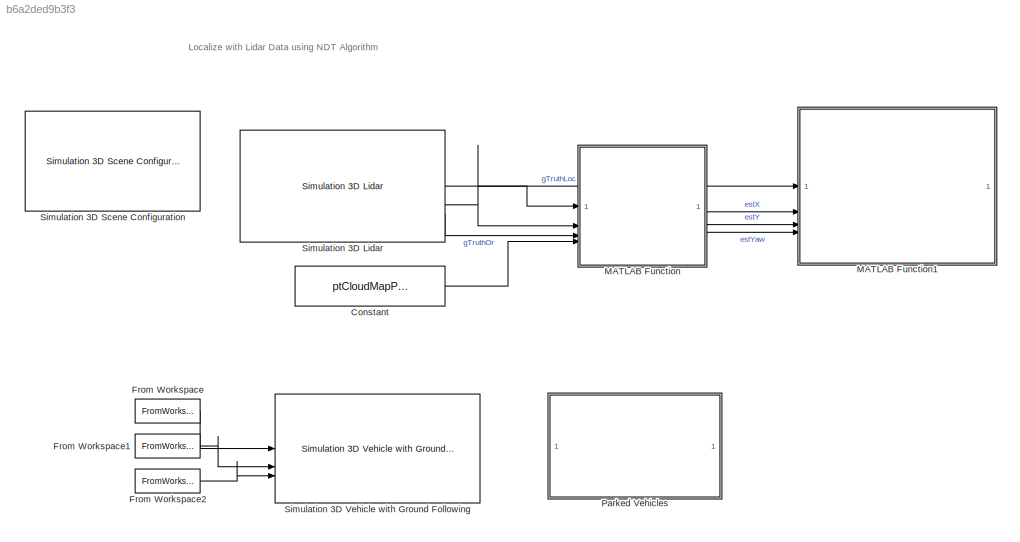
MODEL slx_b6a2ded9b3f3
KIND model
CONFIG AbsTol = auto
CONFIG EnableMultiTasking = off
CONFIG FixedStep = auto
CONFIG MaxStep = auto
CONFIG MinStep = auto
CONFIG PreLoadFcn = data = load('ReferencePathForward.mat');\n\nrefPosesX = data.ReferencePathForward.refPosesX; \nrefPosesY = data.ReferencePathForward.refPosesY;\nrefPosesT = data.ReferencePathForward.refPosesT;\n\nload('parkingLotPCMapPoints.mat','ptCloudMapPoints');
CONFIG RelTol = 1e-3
CONFIG SampleTimeConstraint = Unconstrained
CONFIG SolverName = VariableStepAuto
CONFIG StartTime = 0.0
CONFIG StopTime = 28.964
WORKSPACE source: mxarray member
WORKSPACE ndtMap: pcmapndt (value not decoded)
BLOCK [Constant] Constant
  Value = ptCloudMapPoints
BLOCK [FromWorkspace] From Workspace
  OutputAfterFinalValue = Holding final value
  VariableName = refPosesX
BLOCK [FromWorkspace] From Workspace1
  OutputAfterFinalValue = Holding final value
  VariableName = refPosesY
BLOCK [FromWorkspace] From Workspace2
  OutputAfterFinalValue = Holding final value
  VariableName = refPosesT
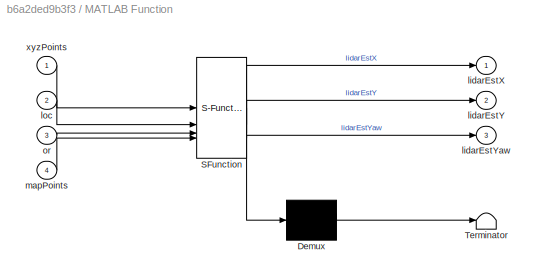
BLOCK [SubSystem] MATLAB Function
  ErrorFcn = Stateflow.Translate.translate
  PermitHierarchicalResolution = ExplicitOnly
  SFBlockType = MATLAB Function
  TreatAsAtomicUnit = on
BLOCK [Demux] MATLAB Function/ Demux 
  Outputs = 1
BLOCK [S-Function] MATLAB Function/ SFunction 
  EnableBusSupport = off
  FunctionName = sf_sfun
  PortCounts = [4 4]
  SFcnIsStateOwnerBlock = off
  SFunctionDeploymentMode = off
  Tag = Stateflow S-Function 2
BLOCK [Terminator] MATLAB Function/ Terminator 
BLOCK [Outport] MATLAB Function/lidarEstX
BLOCK [Outport] MATLAB Function/lidarEstY
  Port = 2
BLOCK [Outport] MATLAB Function/lidarEstYaw
  Port = 3
BLOCK [Inport] MATLAB Function/loc
  Port = 2
BLOCK [Inport] MATLAB Function/mapPoints
  Port = 4
BLOCK [Inport] MATLAB Function/or
  Port = 3
BLOCK [Inport] MATLAB Function/xyzPoints
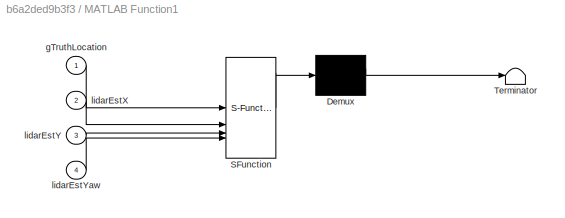
BLOCK [SubSystem] MATLAB Function1
  ErrorFcn = Stateflow.Translate.translate
  PermitHierarchicalResolution = ExplicitOnly
  SFBlockType = MATLAB Function
  StopFcn = % Find figure by name\nviewerFigure = findall(groot, 'type', 'figure', ...\n    'name','Scene Map Display');\n\n% Close figure\nif ~isempty(viewerFigure)\n    viewerFigure = viewerFigure(end);\n    if isvalid(viewerFigure)\n        close(viewerFigure);\n    end\nend
  TreatAsAtomicUnit = on
BLOCK [Demux] MATLAB Function1/ Demux 
  Outputs = 1
BLOCK [S-Function] MATLAB Function1/ SFunction 
  EnableBusSupport = off
  FunctionName = sf_sfun
  PortCounts = [4 1]
  SFcnIsStateOwnerBlock = off
  SFunctionDeploymentMode = off
  Tag = Stateflow S-Function 3
BLOCK [Terminator] MATLAB Function1/ Terminator 
BLOCK [Inport] MATLAB Function1/gTruthLocation
BLOCK [Inport] MATLAB Function1/lidarEstX
  Port = 2
BLOCK [Inport] MATLAB Function1/lidarEstY
  Port = 3
BLOCK [Inport] MATLAB Function1/lidarEstYaw
  Port = 4
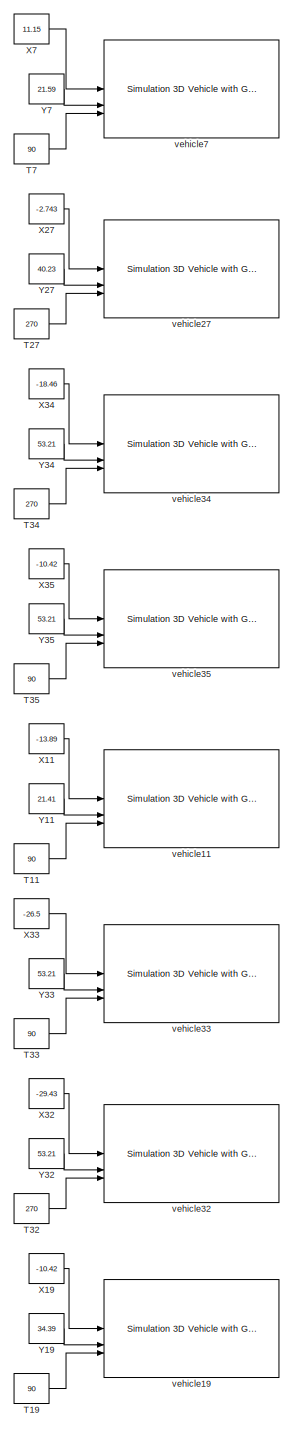
[diagram: Parked Vehicles - part 1/7, full width, top band]
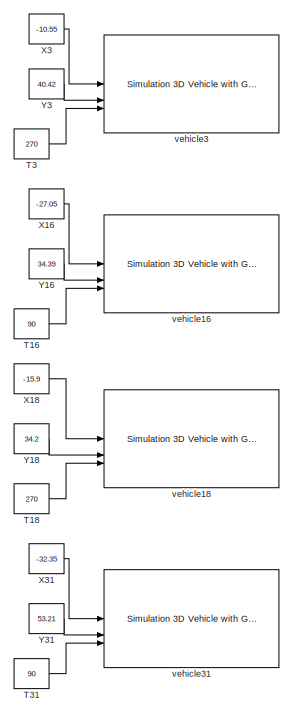
[diagram: Parked Vehicles - part 2/7, full width, top band]
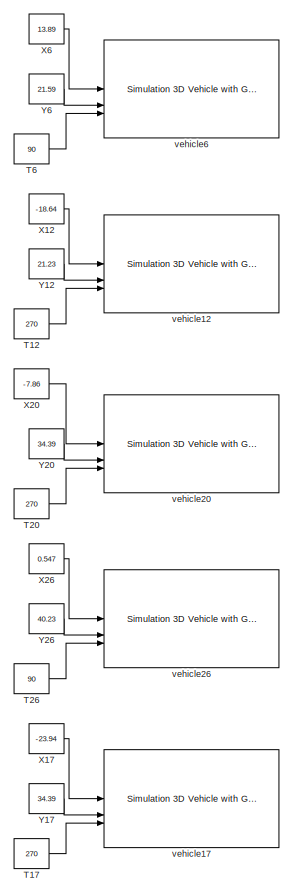
[diagram: Parked Vehicles - part 3/7, full width, middle band]
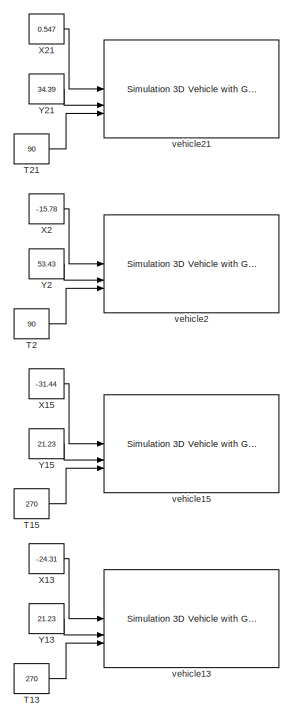
[diagram: Parked Vehicles - part 4/7, full width, middle band]
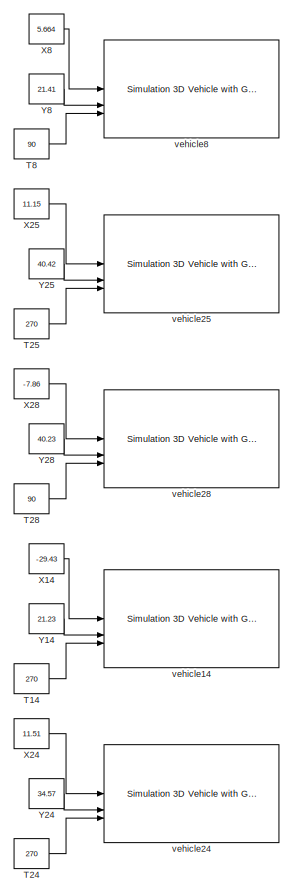
[diagram: Parked Vehicles - part 5/7, full width, bottom band]
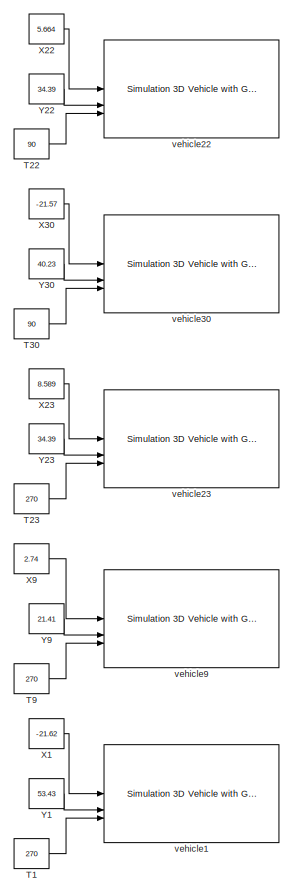
[diagram: Parked Vehicles - part 6/7, full width, bottom band]
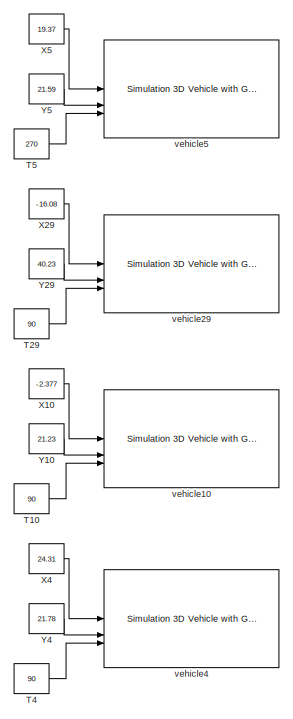
[diagram: Parked Vehicles - part 7/7, full width, bottom band]
BLOCK [SubSystem] Parked Vehicles
BLOCK [Constant] Parked Vehicles/T1
  Value = 270
BLOCK [Constant] Parked Vehicles/T10
  Value = 90
BLOCK [Constant] Parked Vehicles/T11
  Value = 90
BLOCK [Constant] Parked Vehicles/T12
  Value = 270
BLOCK [Constant] Parked Vehicles/T13
  Value = 270
BLOCK [Constant] Parked Vehicles/T14
  Value = 270
BLOCK [Constant] Parked Vehicles/T15
  Value = 270
BLOCK [Constant] Parked Vehicles/T16
  Value = 90
BLOCK [Constant] Parked Vehicles/T17
  Value = 270
BLOCK [Constant] Parked Vehicles/T18
  Value = 270
BLOCK [Constant] Parked Vehicles/T19
  Value = 90
BLOCK [Constant] Parked Vehicles/T2
  Value = 90
BLOCK [Constant] Parked Vehicles/T20
  Value = 270
BLOCK [Constant] Parked Vehicles/T21
  Value = 90
BLOCK [Constant] Parked Vehicles/T22
  Value = 90
BLOCK [Constant] Parked Vehicles/T23
  Value = 270
BLOCK [Constant] Parked Vehicles/T24
  Value = 270
BLOCK [Constant] Parked Vehicles/T25
  Value = 270
BLOCK [Constant] Parked Vehicles/T26
  Value = 90
BLOCK [Constant] Parked Vehicles/T27
  Value = 270
BLOCK [Constant] Parked Vehicles/T28
  Value = 90
BLOCK [Constant] Parked Vehicles/T29
  Value = 90
BLOCK [Constant] Parked Vehicles/T3
  Value = 270
BLOCK [Constant] Parked Vehicles/T30
  Value = 90
BLOCK [Constant] Parked Vehicles/T31
  Value = 90
BLOCK [Constant] Parked Vehicles/T32
  Value = 270
BLOCK [Constant] Parked Vehicles/T33
  Value = 90
BLOCK [Constant] Parked Vehicles/T34
  Value = 270
BLOCK [Constant] Parked Vehicles/T35
  Value = 90
BLOCK [Constant] Parked Vehicles/T4
  Value = 90
BLOCK [Constant] Parked Vehicles/T5
  Value = 270
BLOCK [Constant] Parked Vehicles/T6
  Value = 90
BLOCK [Constant] Parked Vehicles/T7
  Value = 90
BLOCK [Constant] Parked Vehicles/T8
  Value = 90
BLOCK [Constant] Parked Vehicles/T9
  Value = 270
BLOCK [Constant] Parked Vehicles/X1
  Value = -21.62
BLOCK [Constant] Parked Vehicles/X10
  Value = -2.377
BLOCK [Constant] Parked Vehicles/X11
  Value = -13.89
BLOCK [Constant] Parked Vehicles/X12
  Value = -18.64
BLOCK [Constant] Parked Vehicles/X13
  Value = -24.31
BLOCK [Constant] Parked Vehicles/X14
  Value = -29.43
BLOCK [Constant] Parked Vehicles/X15
  Value = -31.44
BLOCK [Constant] Parked Vehicles/X16
  Value = -27.05
BLOCK [Constant] Parked Vehicles/X17
  Value = -23.94
BLOCK [Constant] Parked Vehicles/X18
  Value = -15.9
BLOCK [Constant] Parked Vehicles/X19
  Value = -10.42
BLOCK [Constant] Parked Vehicles/X2
  Value = -15.78
BLOCK [Constant] Parked Vehicles/X20
  Value = -7.86
BLOCK [Constant] Parked Vehicles/X21
  Value = 0.547
BLOCK [Constant] Parked Vehicles/X22
  Value = 5.664
BLOCK [Constant] Parked Vehicles/X23
  Value = 8.589
BLOCK [Constant] Parked Vehicles/X24
  Value = 11.51
BLOCK [Constant] Parked Vehicles/X25
  Value = 11.15
BLOCK [Constant] Parked Vehicles/X26
  Value = 0.547
BLOCK [Constant] Parked Vehicles/X27
  Value = -2.743
BLOCK [Constant] Parked Vehicles/X28
  Value = -7.86
BLOCK [Constant] Parked Vehicles/X29
  Value = -16.08
BLOCK [Constant] Parked Vehicles/X3
  Value = -10.55
BLOCK [Constant] Parked Vehicles/X30
  Value = -21.57
BLOCK [Constant] Parked Vehicles/X31
  Value = -32.35
BLOCK [Constant] Parked Vehicles/X32
  Value = -29.43
BLOCK [Constant] Parked Vehicles/X33
  Value = -26.5
BLOCK [Constant] Parked Vehicles/X34
  Value = -18.46
BLOCK [Constant] Parked Vehicles/X35
  Value = -10.42
BLOCK [Constant] Parked Vehicles/X4
  Value = 24.31
BLOCK [Constant] Parked Vehicles/X5
  Value = 19.37
BLOCK [Constant] Parked Vehicles/X6
  Value = 13.89
BLOCK [Constant] Parked Vehicles/X7
  Value = 11.15
BLOCK [Constant] Parked Vehicles/X8
  Value = 5.664
BLOCK [Constant] Parked Vehicles/X9
  Value = 2.74
BLOCK [Constant] Parked Vehicles/Y1
  Value = 53.43
BLOCK [Constant] Parked Vehicles/Y10
  Value = 21.23
BLOCK [Constant] Parked Vehicles/Y11
  Value = 21.41
BLOCK [Constant] Parked Vehicles/Y12
  Value = 21.23
BLOCK [Constant] Parked Vehicles/Y13
  Value = 21.23
BLOCK [Constant] Parked Vehicles/Y14
  Value = 21.23
BLOCK [Constant] Parked Vehicles/Y15
  Value = 21.23
BLOCK [Constant] Parked Vehicles/Y16
  Value = 34.39
BLOCK [Constant] Parked Vehicles/Y17
  Value = 34.39
BLOCK [Constant] Parked Vehicles/Y18
  Value = 34.2
BLOCK [Constant] Parked Vehicles/Y19
  Value = 34.39
BLOCK [Constant] Parked Vehicles/Y2
  Value = 53.43
BLOCK [Constant] Parked Vehicles/Y20
  Value = 34.39
BLOCK [Constant] Parked Vehicles/Y21
  Value = 34.39
BLOCK [Constant] Parked Vehicles/Y22
  Value = 34.39
BLOCK [Constant] Parked Vehicles/Y23
  Value = 34.39
BLOCK [Constant] Parked Vehicles/Y24
  Value = 34.57
BLOCK [Constant] Parked Vehicles/Y25
  Value = 40.42
BLOCK [Constant] Parked Vehicles/Y26
  Value = 40.23
BLOCK [Constant] Parked Vehicles/Y27
  Value = 40.23
BLOCK [Constant] Parked Vehicles/Y28
  Value = 40.23
BLOCK [Constant] Parked Vehicles/Y29
  Value = 40.23
BLOCK [Constant] Parked Vehicles/Y3
  Value = 40.42
BLOCK [Constant] Parked Vehicles/Y30
  Value = 40.23
BLOCK [Constant] Parked Vehicles/Y31
  Value = 53.21
BLOCK [Constant] Parked Vehicles/Y32
  Value = 53.21
BLOCK [Constant] Parked Vehicles/Y33
  Value = 53.21
BLOCK [Constant] Parked Vehicles/Y34
  Value = 53.21
BLOCK [Constant] Parked Vehicles/Y35
  Value = 53.21
BLOCK [Constant] Parked Vehicles/Y4
  Value = 21.78
BLOCK [Constant] Parked Vehicles/Y5
  Value = 21.59
BLOCK [Constant] Parked Vehicles/Y6
  Value = 21.59
BLOCK [Constant] Parked Vehicles/Y7
  Value = 21.59
BLOCK [Constant] Parked Vehicles/Y8
  Value = 21.41
BLOCK [Constant] Parked Vehicles/Y9
  Value = 21.41
BLOCK [Reference] Parked Vehicles/vehicle1  REF=sim3dautolib/Simulation 3D Vehicle with Ground Following
  LibrarySourceBlock = drivingsim3d/Simulation 3D Vehicle with Ground Following
  Priority = -1
  SourceBlock = sim3dautolib/Simulation 3D Vehicle with Ground Following
  SourceType = Simulation 3D Vehicle with Ground Following
BLOCK [Reference] Parked Vehicles/vehicle10  REF=sim3dautolib/Simulation 3D Vehicle with Ground Following
  LibrarySourceBlock = drivingsim3d/Simulation 3D Vehicle with Ground Following
  Priority = -1
  SourceBlock = sim3dautolib/Simulation 3D Vehicle with Ground Following
  SourceType = Simulation 3D Vehicle with Ground Following
BLOCK [Reference] Parked Vehicles/vehicle11  REF=sim3dautolib/Simulation 3D Vehicle with Ground Following
  LibrarySourceBlock = drivingsim3d/Simulation 3D Vehicle with Ground Following
  Priority = -1
  SourceBlock = sim3dautolib/Simulation 3D Vehicle with Ground Following
  SourceType = Simulation 3D Vehicle with Ground Following
BLOCK [Reference] Parked Vehicles/vehicle12  REF=sim3dautolib/Simulation 3D Vehicle with Ground Following
  LibrarySourceBlock = drivingsim3d/Simulation 3D Vehicle with Ground Following
  Priority = -1
  SourceBlock = sim3dautolib/Simulation 3D Vehicle with Ground Following
  SourceType = Simulation 3D Vehicle with Ground Following
BLOCK [Reference] Parked Vehicles/vehicle13  REF=sim3dautolib/Simulation 3D Vehicle with Ground Following
  LibrarySourceBlock = drivingsim3d/Simulation 3D Vehicle with Ground Following
  Priority = -1
  SourceBlock = sim3dautolib/Simulation 3D Vehicle with Ground Following
  SourceType = Simulation 3D Vehicle with Ground Following
BLOCK [Reference] Parked Vehicles/vehicle14  REF=sim3dautolib/Simulation 3D Vehicle with Ground Following
  LibrarySourceBlock = drivingsim3d/Simulation 3D Vehicle with Ground Following
  Priority = -1
  SourceBlock = sim3dautolib/Simulation 3D Vehicle with Ground Following
  SourceType = Simulation 3D Vehicle with Ground Following
BLOCK [Reference] Parked Vehicles/vehicle15  REF=sim3dautolib/Simulation 3D Vehicle with Ground Following
  LibrarySourceBlock = drivingsim3d/Simulation 3D Vehicle with Ground Following
  Priority = -1
  SourceBlock = sim3dautolib/Simulation 3D Vehicle with Ground Following
  SourceType = Simulation 3D Vehicle with Ground Following
BLOCK [Reference] Parked Vehicles/vehicle16  REF=sim3dautolib/Simulation 3D Vehicle with Ground Following
  LibrarySourceBlock = drivingsim3d/Simulation 3D Vehicle with Ground Following
  Priority = -1
  SourceBlock = sim3dautolib/Simulation 3D Vehicle with Ground Following
  SourceType = Simulation 3D Vehicle with Ground Following
BLOCK [Reference] Parked Vehicles/vehicle17  REF=sim3dautolib/Simulation 3D Vehicle with Ground Following
  LibrarySourceBlock = drivingsim3d/Simulation 3D Vehicle with Ground Following
  Priority = -1
  SourceBlock = sim3dautolib/Simulation 3D Vehicle with Ground Following
  SourceType = Simulation 3D Vehicle with Ground Following
BLOCK [Reference] Parked Vehicles/vehicle18  REF=sim3dautolib/Simulation 3D Vehicle with Ground Following
  LibrarySourceBlock = drivingsim3d/Simulation 3D Vehicle with Ground Following
  Priority = -1
  SourceBlock = sim3dautolib/Simulation 3D Vehicle with Ground Following
  SourceType = Simulation 3D Vehicle with Ground Following
BLOCK [Reference] Parked Vehicles/vehicle19  REF=sim3dautolib/Simulation 3D Vehicle with Ground Following
  LibrarySourceBlock = drivingsim3d/Simulation 3D Vehicle with Ground Following
  Priority = -1
  SourceBlock = sim3dautolib/Simulation 3D Vehicle with Ground Following
  SourceType = Simulation 3D Vehicle with Ground Following
BLOCK [Reference] Parked Vehicles/vehicle2  REF=sim3dautolib/Simulation 3D Vehicle with Ground Following
  LibrarySourceBlock = drivingsim3d/Simulation 3D Vehicle with Ground Following
  Priority = -1
  SourceBlock = sim3dautolib/Simulation 3D Vehicle with Ground Following
  SourceType = Simulation 3D Vehicle with Ground Following
BLOCK [Reference] Parked Vehicles/vehicle20  REF=sim3dautolib/Simulation 3D Vehicle with Ground Following
  LibrarySourceBlock = drivingsim3d/Simulation 3D Vehicle with Ground Following
  Priority = -1
  SourceBlock = sim3dautolib/Simulation 3D Vehicle with Ground Following
  SourceType = Simulation 3D Vehicle with Ground Following
BLOCK [Reference] Parked Vehicles/vehicle21  REF=sim3dautolib/Simulation 3D Vehicle with Ground Following
  LibrarySourceBlock = drivingsim3d/Simulation 3D Vehicle with Ground Following
  Priority = -1
  SourceBlock = sim3dautolib/Simulation 3D Vehicle with Ground Following
  SourceType = Simulation 3D Vehicle with Ground Following
BLOCK [Reference] Parked Vehicles/vehicle22  REF=sim3dautolib/Simulation 3D Vehicle with Ground Following
  LibrarySourceBlock = drivingsim3d/Simulation 3D Vehicle with Ground Following
  Priority = -1
  SourceBlock = sim3dautolib/Simulation 3D Vehicle with Ground Following
  SourceType = Simulation 3D Vehicle with Ground Following
BLOCK [Reference] Parked Vehicles/vehicle23  REF=sim3dautolib/Simulation 3D Vehicle with Ground Following
  LibrarySourceBlock = drivingsim3d/Simulation 3D Vehicle with Ground Following
  Priority = -1
  SourceBlock = sim3dautolib/Simulation 3D Vehicle with Ground Following
  SourceType = Simulation 3D Vehicle with Ground Following
BLOCK [Reference] Parked Vehicles/vehicle24  REF=sim3dautolib/Simulation 3D Vehicle with Ground Following
  LibrarySourceBlock = drivingsim3d/Simulation 3D Vehicle with Ground Following
  Priority = -1
  SourceBlock = sim3dautolib/Simulation 3D Vehicle with Ground Following
  SourceType = Simulation 3D Vehicle with Ground Following
BLOCK [Reference] Parked Vehicles/vehicle25  REF=sim3dautolib/Simulation 3D Vehicle with Ground Following
  LibrarySourceBlock = drivingsim3d/Simulation 3D Vehicle with Ground Following
  Priority = -1
  SourceBlock = sim3dautolib/Simulation 3D Vehicle with Ground Following
  SourceType = Simulation 3D Vehicle with Ground Following
BLOCK [Reference] Parked Vehicles/vehicle26  REF=sim3dautolib/Simulation 3D Vehicle with Ground Following
  LibrarySourceBlock = drivingsim3d/Simulation 3D Vehicle with Ground Following
  Priority = -1
  SourceBlock = sim3dautolib/Simulation 3D Vehicle with Ground Following
  SourceType = Simulation 3D Vehicle with Ground Following
BLOCK [Reference] Parked Vehicles/vehicle27  REF=sim3dautolib/Simulation 3D Vehicle with Ground Following
  LibrarySourceBlock = drivingsim3d/Simulation 3D Vehicle with Ground Following
  Priority = -1
  SourceBlock = sim3dautolib/Simulation 3D Vehicle with Ground Following
  SourceType = Simulation 3D Vehicle with Ground Following
BLOCK [Reference] Parked Vehicles/vehicle28  REF=sim3dautolib/Simulation 3D Vehicle with Ground Following
  LibrarySourceBlock = drivingsim3d/Simulation 3D Vehicle with Ground Following
  Priority = -1
  SourceBlock = sim3dautolib/Simulation 3D Vehicle with Ground Following
  SourceType = Simulation 3D Vehicle with Ground Following
BLOCK [Reference] Parked Vehicles/vehicle29  REF=sim3dautolib/Simulation 3D Vehicle with Ground Following
  LibrarySourceBlock = drivingsim3d/Simulation 3D Vehicle with Ground Following
  Priority = -1
  SourceBlock = sim3dautolib/Simulation 3D Vehicle with Ground Following
  SourceType = Simulation 3D Vehicle with Ground Following
BLOCK [Reference] Parked Vehicles/vehicle3  REF=sim3dautolib/Simulation 3D Vehicle with Ground Following
  LibrarySourceBlock = drivingsim3d/Simulation 3D Vehicle with Ground Following
  Priority = -1
  SourceBlock = sim3dautolib/Simulation 3D Vehicle with Ground Following
  SourceType = Simulation 3D Vehicle with Ground Following
BLOCK [Reference] Parked Vehicles/vehicle30  REF=sim3dautolib/Simulation 3D Vehicle with Ground Following
  LibrarySourceBlock = drivingsim3d/Simulation 3D Vehicle with Ground Following
  Priority = -1
  SourceBlock = sim3dautolib/Simulation 3D Vehicle with Ground Following
  SourceType = Simulation 3D Vehicle with Ground Following
BLOCK [Reference] Parked Vehicles/vehicle31  REF=sim3dautolib/Simulation 3D Vehicle with Ground Following
  LibrarySourceBlock = drivingsim3d/Simulation 3D Vehicle with Ground Following
  Priority = -1
  SourceBlock = sim3dautolib/Simulation 3D Vehicle with Ground Following
  SourceType = Simulation 3D Vehicle with Ground Following
BLOCK [Reference] Parked Vehicles/vehicle32  REF=sim3dautolib/Simulation 3D Vehicle with Ground Following
  LibrarySourceBlock = drivingsim3d/Simulation 3D Vehicle with Ground Following
  Priority = -1
  SourceBlock = sim3dautolib/Simulation 3D Vehicle with Ground Following
  SourceType = Simulation 3D Vehicle with Ground Following
BLOCK [Reference] Parked Vehicles/vehicle33  REF=sim3dautolib/Simulation 3D Vehicle with Ground Following
  LibrarySourceBlock = drivingsim3d/Simulation 3D Vehicle with Ground Following
  Priority = -1
  SourceBlock = sim3dautolib/Simulation 3D Vehicle with Ground Following
  SourceType = Simulation 3D Vehicle with Ground Following
BLOCK [Reference] Parked Vehicles/vehicle34  REF=sim3dautolib/Simulation 3D Vehicle with Ground Following
  LibrarySourceBlock = drivingsim3d/Simulation 3D Vehicle with Ground Following
  Priority = -1
  SourceBlock = sim3dautolib/Simulation 3D Vehicle with Ground Following
  SourceType = Simulation 3D Vehicle with Ground Following
BLOCK [Reference] Parked Vehicles/vehicle35  REF=sim3dautolib/Simulation 3D Vehicle with Ground Following
  LibrarySourceBlock = drivingsim3d/Simulation 3D Vehicle with Ground Following
  Priority = -1
  SourceBlock = sim3dautolib/Simulation 3D Vehicle with Ground Following
  SourceType = Simulation 3D Vehicle with Ground Following
BLOCK [Reference] Parked Vehicles/vehicle4  REF=sim3dautolib/Simulation 3D Vehicle with Ground Following
  LibrarySourceBlock = drivingsim3d/Simulation 3D Vehicle with Ground Following
  Priority = -1
  SourceBlock = sim3dautolib/Simulation 3D Vehicle with Ground Following
  SourceType = Simulation 3D Vehicle with Ground Following
BLOCK [Reference] Parked Vehicles/vehicle5  REF=sim3dautolib/Simulation 3D Vehicle with Ground Following
  LibrarySourceBlock = drivingsim3d/Simulation 3D Vehicle with Ground Following
  Priority = -1
  SourceBlock = sim3dautolib/Simulation 3D Vehicle with Ground Following
  SourceType = Simulation 3D Vehicle with Ground Following
BLOCK [Reference] Parked Vehicles/vehicle6  REF=sim3dautolib/Simulation 3D Vehicle with Ground Following
  LibrarySourceBlock = drivingsim3d/Simulation 3D Vehicle with Ground Following
  Priority = -1
  SourceBlock = sim3dautolib/Simulation 3D Vehicle with Ground Following
  SourceType = Simulation 3D Vehicle with Ground Following
BLOCK [Reference] Parked Vehicles/vehicle7  REF=sim3dautolib/Simulation 3D Vehicle with Ground Following
  LibrarySourceBlock = drivingsim3d/Simulation 3D Vehicle with Ground Following
  Priority = -1
  SourceBlock = sim3dautolib/Simulation 3D Vehicle with Ground Following
  SourceType = Simulation 3D Vehicle with Ground Following
BLOCK [Reference] Parked Vehicles/vehicle8  REF=sim3dautolib/Simulation 3D Vehicle with Ground Following
  LibrarySourceBlock = drivingsim3d/Simulation 3D Vehicle with Ground Following
  Priority = -1
  SourceBlock = sim3dautolib/Simulation 3D Vehicle with Ground Following
  SourceType = Simulation 3D Vehicle with Ground Following
BLOCK [Reference] Parked Vehicles/vehicle9  REF=sim3dautolib/Simulation 3D Vehicle with Ground Following
  LibrarySourceBlock = drivingsim3d/Simulation 3D Vehicle with Ground Following
  Priority = -1
  SourceBlock = sim3dautolib/Simulation 3D Vehicle with Ground Following
  SourceType = Simulation 3D Vehicle with Ground Following
BLOCK [Reference] Simulation 3D Lidar  REF=sim3dphyssensorlib/Simulation 3D Lidar
  LibrarySourceBlock = drivingsim3d/Simulation 3D Lidar
  Priority = 1
  SourceBlock = sim3dphyssensorlib/Simulation 3D Lidar
  SourceType = Simulation 3D Lidar
BLOCK [Reference] Simulation 3D Scene Configuration  REF=sim3dlib/Simulation 3D Scene Configuration
  LibrarySourceBlock = drivingsim3d/Simulation 3D Scene Configuration
  Priority = 0
  SourceBlock = sim3dlib/Simulation 3D Scene Configuration
  SourceType = Simulation 3D Scene Configuration
BLOCK [Reference] Simulation 3D Vehicle with Ground Following  REF=sim3dautolib/Simulation 3D Vehicle with Ground Following
  LibrarySourceBlock = drivingsim3d/Simulation 3D Vehicle with Ground Following
  Priority = -1
  SourceBlock = sim3dautolib/Simulation 3D Vehicle with Ground Following
  SourceType = Simulation 3D Vehicle with Ground Following
ANNOTATION (root): Localize with Lidar Data using NDT Algorithm
LINE Constant:1 -> MATLAB Function:4
LINE From Workspace1:1 -> Simulation 3D Vehicle with Ground Following:2
LINE From Workspace2:1 -> Simulation 3D Vehicle with Ground Following:3
LINE From Workspace:1 -> Simulation 3D Vehicle with Ground Following:1
LINE MATLAB Function:1 -> MATLAB Function1:2
LINE MATLAB Function:2 -> MATLAB Function1:3
LINE MATLAB Function:3 -> MATLAB Function1:4
LINE Parked Vehicles/T10:1 -> Parked Vehicles/vehicle10:3
LINE Parked Vehicles/T11:1 -> Parked Vehicles/vehicle11:3
LINE Parked Vehicles/T12:1 -> Parked Vehicles/vehicle12:3
LINE Parked Vehicles/T13:1 -> Parked Vehicles/vehicle13:3
LINE Parked Vehicles/T14:1 -> Parked Vehicles/vehicle14:3
LINE Parked Vehicles/T15:1 -> Parked Vehicles/vehicle15:3
LINE Parked Vehicles/T16:1 -> Parked Vehicles/vehicle16:3
LINE Parked Vehicles/T17:1 -> Parked Vehicles/vehicle17:3
LINE Parked Vehicles/T18:1 -> Parked Vehicles/vehicle18:3
LINE Parked Vehicles/T19:1 -> Parked Vehicles/vehicle19:3
LINE Parked Vehicles/T1:1 -> Parked Vehicles/vehicle1:3
LINE Parked Vehicles/T20:1 -> Parked Vehicles/vehicle20:3
LINE Parked Vehicles/T21:1 -> Parked Vehicles/vehicle21:3
LINE Parked Vehicles/T22:1 -> Parked Vehicles/vehicle22:3
LINE Parked Vehicles/T23:1 -> Parked Vehicles/vehicle23:3
LINE Parked Vehicles/T24:1 -> Parked Vehicles/vehicle24:3
LINE Parked Vehicles/T25:1 -> Parked Vehicles/vehicle25:3
LINE Parked Vehicles/T26:1 -> Parked Vehicles/vehicle26:3
LINE Parked Vehicles/T27:1 -> Parked Vehicles/vehicle27:3
LINE Parked Vehicles/T28:1 -> Parked Vehicles/vehicle28:3
LINE Parked Vehicles/T29:1 -> Parked Vehicles/vehicle29:3
LINE Parked Vehicles/T2:1 -> Parked Vehicles/vehicle2:3
LINE Parked Vehicles/T30:1 -> Parked Vehicles/vehicle30:3
LINE Parked Vehicles/T31:1 -> Parked Vehicles/vehicle31:3
LINE Parked Vehicles/T32:1 -> Parked Vehicles/vehicle32:3
LINE Parked Vehicles/T33:1 -> Parked Vehicles/vehicle33:3
LINE Parked Vehicles/T34:1 -> Parked Vehicles/vehicle34:3
LINE Parked Vehicles/T35:1 -> Parked Vehicles/vehicle35:3
LINE Parked Vehicles/T3:1 -> Parked Vehicles/vehicle3:3
LINE Parked Vehicles/T4:1 -> Parked Vehicles/vehicle4:3
LINE Parked Vehicles/T5:1 -> Parked Vehicles/vehicle5:3
LINE Parked Vehicles/T6:1 -> Parked Vehicles/vehicle6:3
LINE Parked Vehicles/T7:1 -> Parked Vehicles/vehicle7:3
LINE Parked Vehicles/T8:1 -> Parked Vehicles/vehicle8:3
LINE Parked Vehicles/T9:1 -> Parked Vehicles/vehicle9:3
LINE Parked Vehicles/X10:1 -> Parked Vehicles/vehicle10:1
LINE Parked Vehicles/X11:1 -> Parked Vehicles/vehicle11:1
LINE Parked Vehicles/X12:1 -> Parked Vehicles/vehicle12:1
LINE Parked Vehicles/X13:1 -> Parked Vehicles/vehicle13:1
LINE Parked Vehicles/X14:1 -> Parked Vehicles/vehicle14:1
LINE Parked Vehicles/X15:1 -> Parked Vehicles/vehicle15:1
LINE Parked Vehicles/X16:1 -> Parked Vehicles/vehicle16:1
LINE Parked Vehicles/X17:1 -> Parked Vehicles/vehicle17:1
LINE Parked Vehicles/X18:1 -> Parked Vehicles/vehicle18:1
LINE Parked Vehicles/X19:1 -> Parked Vehicles/vehicle19:1
LINE Parked Vehicles/X1:1 -> Parked Vehicles/vehicle1:1
LINE Parked Vehicles/X20:1 -> Parked Vehicles/vehicle20:1
LINE Parked Vehicles/X21:1 -> Parked Vehicles/vehicle21:1
LINE Parked Vehicles/X22:1 -> Parked Vehicles/vehicle22:1
LINE Parked Vehicles/X23:1 -> Parked Vehicles/vehicle23:1
LINE Parked Vehicles/X24:1 -> Parked Vehicles/vehicle24:1
LINE Parked Vehicles/X25:1 -> Parked Vehicles/vehicle25:1
LINE Parked Vehicles/X26:1 -> Parked Vehicles/vehicle26:1
LINE Parked Vehicles/X27:1 -> Parked Vehicles/vehicle27:1
LINE Parked Vehicles/X28:1 -> Parked Vehicles/vehicle28:1
LINE Parked Vehicles/X29:1 -> Parked Vehicles/vehicle29:1
LINE Parked Vehicles/X2:1 -> Parked Vehicles/vehicle2:1
LINE Parked Vehicles/X30:1 -> Parked Vehicles/vehicle30:1
LINE Parked Vehicles/X31:1 -> Parked Vehicles/vehicle31:1
LINE Parked Vehicles/X32:1 -> Parked Vehicles/vehicle32:1
LINE Parked Vehicles/X33:1 -> Parked Vehicles/vehicle33:1
LINE Parked Vehicles/X34:1 -> Parked Vehicles/vehicle34:1
LINE Parked Vehicles/X35:1 -> Parked Vehicles/vehicle35:1
LINE Parked Vehicles/X3:1 -> Parked Vehicles/vehicle3:1
LINE Parked Vehicles/X4:1 -> Parked Vehicles/vehicle4:1
LINE Parked Vehicles/X5:1 -> Parked Vehicles/vehicle5:1
LINE Parked Vehicles/X6:1 -> Parked Vehicles/vehicle6:1
LINE Parked Vehicles/X7:1 -> Parked Vehicles/vehicle7:1
LINE Parked Vehicles/X8:1 -> Parked Vehicles/vehicle8:1
LINE Parked Vehicles/X9:1 -> Parked Vehicles/vehicle9:1
LINE Parked Vehicles/Y10:1 -> Parked Vehicles/vehicle10:2
LINE Parked Vehicles/Y11:1 -> Parked Vehicles/vehicle11:2
LINE Parked Vehicles/Y12:1 -> Parked Vehicles/vehicle12:2
LINE Parked Vehicles/Y13:1 -> Parked Vehicles/vehicle13:2
LINE Parked Vehicles/Y14:1 -> Parked Vehicles/vehicle14:2
LINE Parked Vehicles/Y15:1 -> Parked Vehicles/vehicle15:2
LINE Parked Vehicles/Y16:1 -> Parked Vehicles/vehicle16:2
LINE Parked Vehicles/Y17:1 -> Parked Vehicles/vehicle17:2
LINE Parked Vehicles/Y18:1 -> Parked Vehicles/vehicle18:2
LINE Parked Vehicles/Y19:1 -> Parked Vehicles/vehicle19:2
LINE Parked Vehicles/Y1:1 -> Parked Vehicles/vehicle1:2
LINE Parked Vehicles/Y20:1 -> Parked Vehicles/vehicle20:2
LINE Parked Vehicles/Y21:1 -> Parked Vehicles/vehicle21:2
LINE Parked Vehicles/Y22:1 -> Parked Vehicles/vehicle22:2
LINE Parked Vehicles/Y23:1 -> Parked Vehicles/vehicle23:2
LINE Parked Vehicles/Y24:1 -> Parked Vehicles/vehicle24:2
LINE Parked Vehicles/Y25:1 -> Parked Vehicles/vehicle25:2
LINE Parked Vehicles/Y26:1 -> Parked Vehicles/vehicle26:2
LINE Parked Vehicles/Y27:1 -> Parked Vehicles/vehicle27:2
LINE Parked Vehicles/Y28:1 -> Parked Vehicles/vehicle28:2
LINE Parked Vehicles/Y29:1 -> Parked Vehicles/vehicle29:2
LINE Parked Vehicles/Y2:1 -> Parked Vehicles/vehicle2:2
LINE Parked Vehicles/Y30:1 -> Parked Vehicles/vehicle30:2
LINE Parked Vehicles/Y31:1 -> Parked Vehicles/vehicle31:2
LINE Parked Vehicles/Y32:1 -> Parked Vehicles/vehicle32:2
LINE Parked Vehicles/Y33:1 -> Parked Vehicles/vehicle33:2
LINE Parked Vehicles/Y34:1 -> Parked Vehicles/vehicle34:2
LINE Parked Vehicles/Y35:1 -> Parked Vehicles/vehicle35:2
LINE Parked Vehicles/Y3:1 -> Parked Vehicles/vehicle3:2
LINE Parked Vehicles/Y4:1 -> Parked Vehicles/vehicle4:2
LINE Parked Vehicles/Y5:1 -> Parked Vehicles/vehicle5:2
LINE Parked Vehicles/Y6:1 -> Parked Vehicles/vehicle6:2
LINE Parked Vehicles/Y7:1 -> Parked Vehicles/vehicle7:2
LINE Parked Vehicles/Y8:1 -> Parked Vehicles/vehicle8:2
LINE Parked Vehicles/Y9:1 -> Parked Vehicles/vehicle9:2
LINE Simulation 3D Lidar:1 -> MATLAB Function:1
NET Simulation 3D Lidar:2 -> MATLAB Function1:1, MATLAB Function:2
LINE Simulation 3D Lidar:3 -> MATLAB Function:3
note: NET lines group one-source signal fan-out (src -> all destinations, sorted); 1:1 wires keep LINE
CHART MATLAB Function states=1 transitions=1
  STATE_LABEL 'eML_blk_kernel()'
  STATE_LABEL 'SCRIPT:\nfunction [lidarEstX,lidarEstY,lidarEstYaw] = Localize(xyzPoints,loc,or,mapPoints)\n    \n    persistent initPose frameCount ndtMap;\n    coder.extrinsic("helperLidarLocalizerNDT","pcmapndt","pointCloud","selectSubmap","rigid3d");\n    submapSize = [30 30 5];  \n    \n    % Create ndt map from point cloud map at the beginning of simulation\n    if isempty(ndtMap)\n        rng(0)\n        ptMap = poi...<+875ch>'
CHART MATLAB Function1 states=1 transitions=1
  STATE_LABEL 'eML_blk_kernel()'
  STATE_LABEL "SCRIPT:\nfunction VisualizeLocalization(gTruthLocation,lidarEstX,lidarEstY,lidarEstYaw)\n%VisualizeLocalizationPath Visualize localization path.\n\ncoder.extrinsic('helperGetSceneImage', 'figure', 'imshow', 'title', ...\n    'get', 'set', 'movegui', 'gca', 'isvalid', 'hold','showShape', 'scatter', ...\n    'helperUpdateScatter', 'xlim', 'ylim','legend');\n\npersistent hFig hAx hScEst hScGt;\n\nvehicleColor ...<+1299ch>"
CHART  states=0 transitions=0
CHART  states=0 transitions=0
